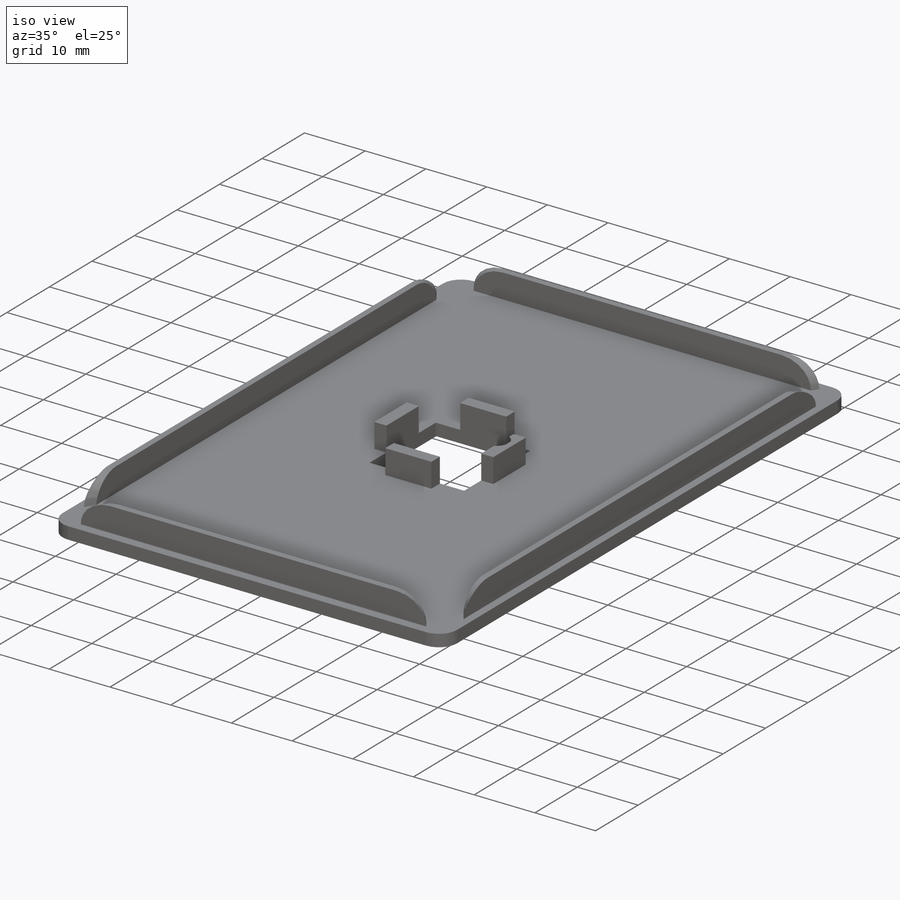
[diagram: iso view]
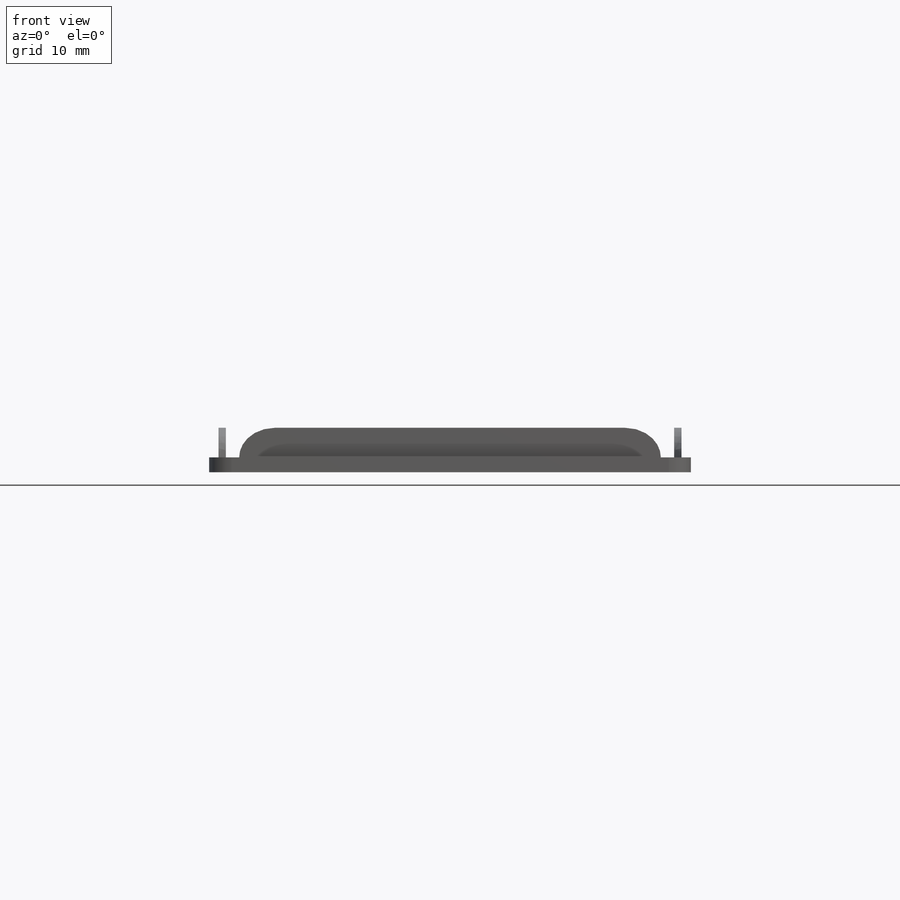
[diagram: front view]
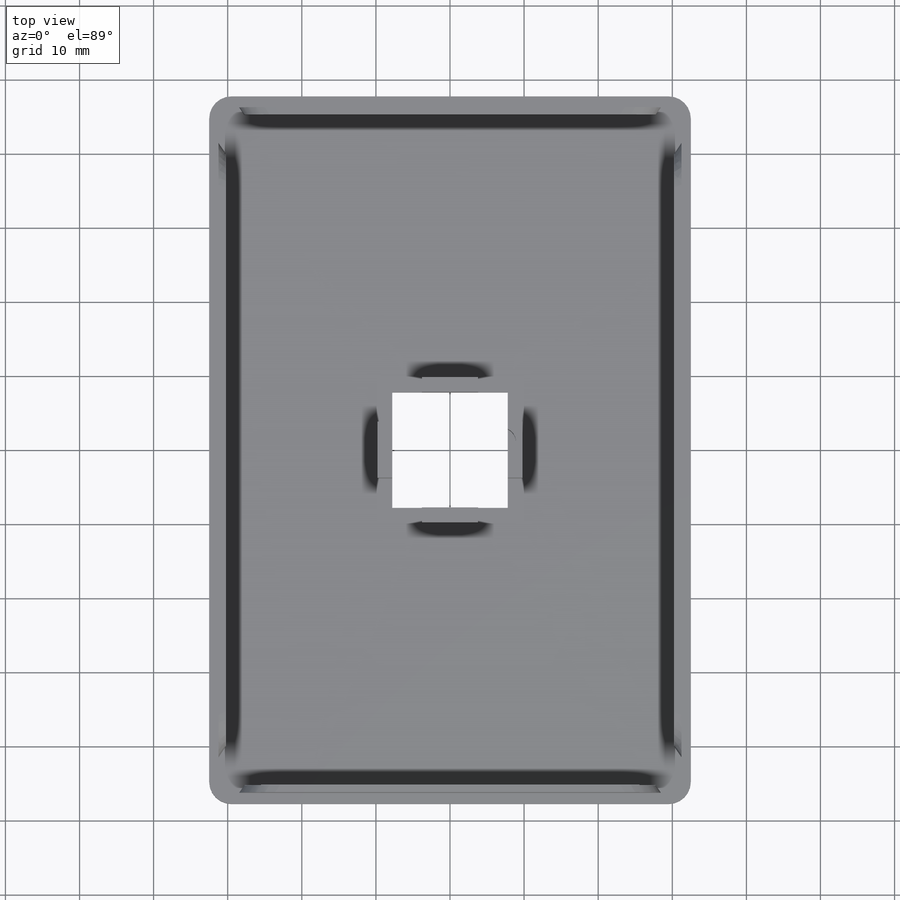
[diagram: top view]
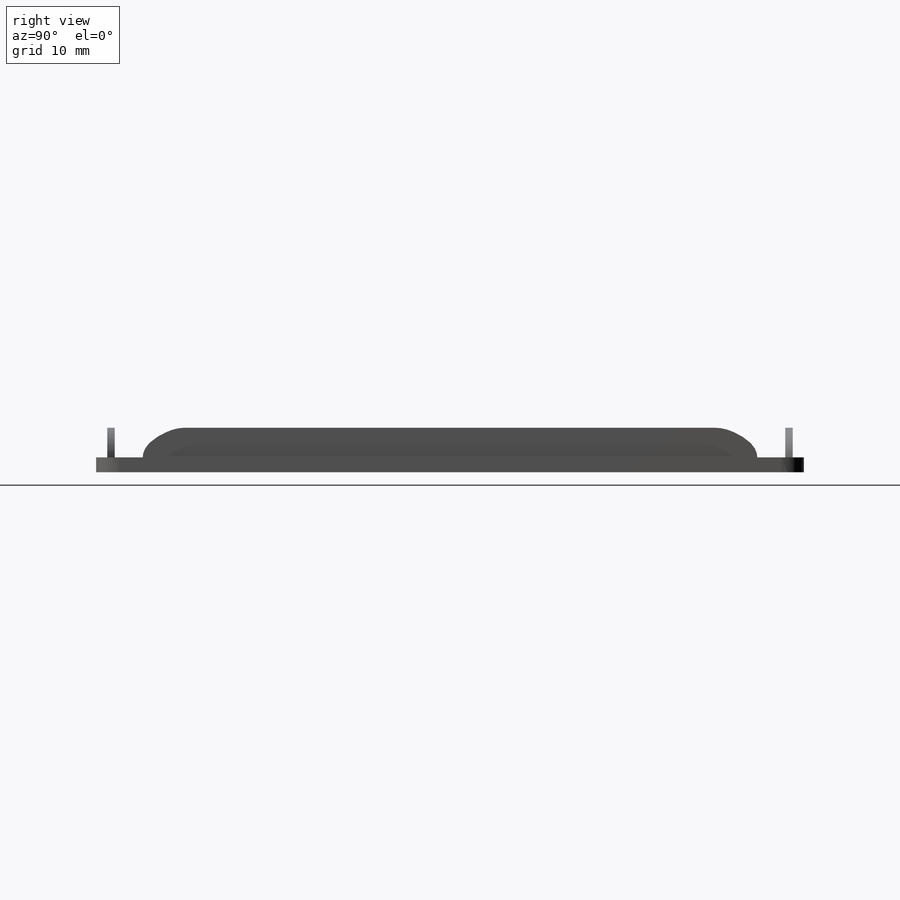
[diagram: right view]
SOLIDWORKS PART (.sldprt)
format: sldprt  version: not decoded by parser v0  size: 347,136 bytes
history: native  units: mm
features: sketch x8, extrude x4, cut_extrude x4, fillet x2, material x1 (+12 scaffold rows collapsed)
feature tree (31):
  scaffold x12  (default folders/planes/origin — collapsed)
  material  "Material <not specified>"
  sketch  "Sketch1"  dims[D1=62.5mm D2=92.5mm D3=65.0mm D4=95.5mm]
  extrude  "Boss-Extrude1"  Depth=2mm
  extrude  "Boss-Extrude2"  [1 undecoded]
  sketch  "Sketch1<3>"  dims[D1=6.0mm]
  sketch  "Sketch2"  dims[c1.D3=4.0mm c1.D7=16.3mm c1.D1=15.6mm c1.D2=15.6mm c1.D4=5.0mm c1.D5=7.0mm c2.D7=21.3mm c2.D6=2.0mm]
  extrude  "Boss-Extrude3"  [1 undecoded]
  sketch  "Sketch2<4>"  dims[D1=6.0mm]
  cut_extrude  "Cut-Extrude2"  Depth=39mm
  sketch  "Sketch3"  dims[c1.D3=5.0mm c1.D6=5.0mm c1.D7=5.0mm c1.D1=10.0mm c1.D2=5.0mm c1.D4=7.5mm c1.D5=7.5mm c1.D8=7.5mm c1.D9=7.5mm c2.D4=0.0mm c2.D1=2.5mm c2.D2=2.5mm]
  cut_extrude  "Cut-Extrude3"  Depth=8mm
  fillet  "Fillet1"  Radius=4mm
  sketch  "Sketch5"  dims[D1=1.0mm]
  sketch  "Sketch7"
  extrude  "Boss-Extrude4"  Depth=1mm
  cut_extrude  "Cut-Extrude7"  Depth=4mm
  fillet  "Fillet2"  Radius=3mm
  sketch  "Sketch9"  dims[D1=6.0mm D2=6.0mm D3=6.0mm D4=6.0mm D5=6.0mm D6=6.0mm D7=6.0mm D8=6.0mm]
  cut_extrude  "Cut-Extrude8"  Depth=10mm
decode coverage: 15 of 18 modeling features carry decoded parameters
note: 2 parameter values undecoded
note: suppression state not decoded; provenance and decode notes live in map.json
